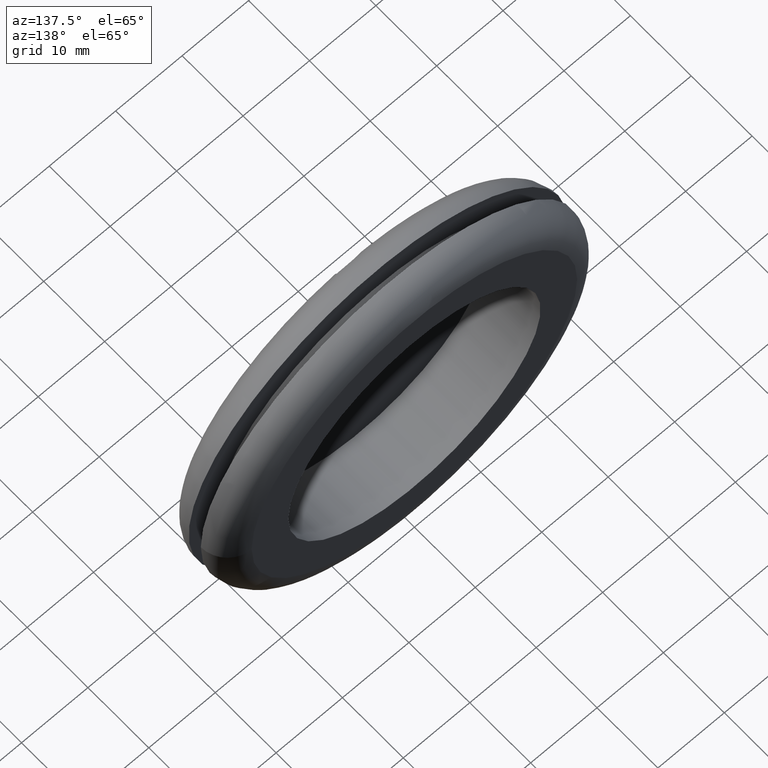
[diagram: clean part render]
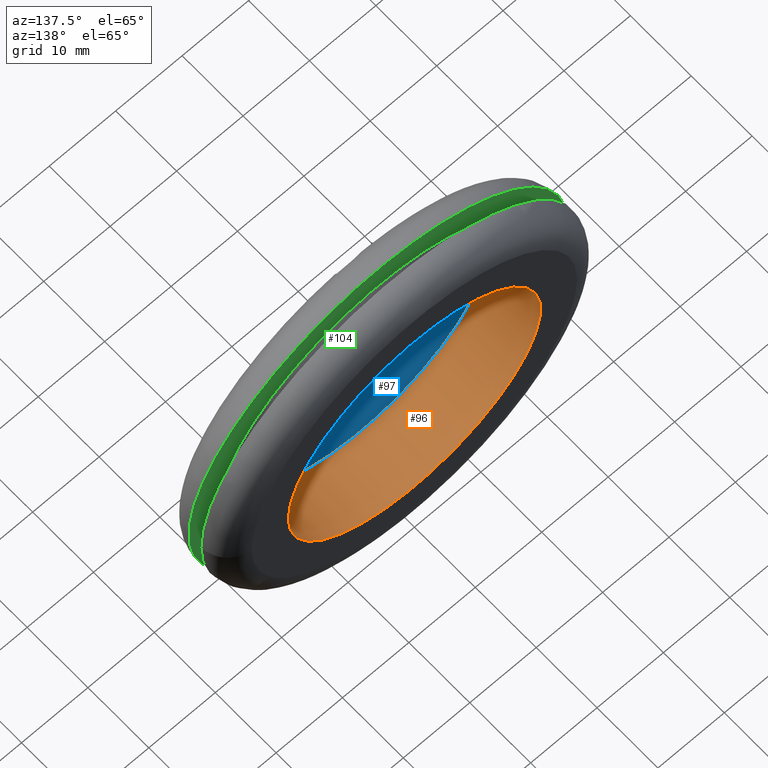
[diagram: same view with three faces highlighted in distinct colors, each labeled with its STEP entity id]
A machine part, auxiliary view with three faces highlighted in distinct colors.
Their STEP definitions:

[orange] entity #96 — the highlighted cylindrical surface (bore or boss wall) has radius 19 mm, axis along (0, -1, 0).
#22=FACE_BOUND('',#39,.T.);
#29=FACE_OUTER_BOUND('',#38,.T.);
#38=EDGE_LOOP('',(#78));
#39=EDGE_LOOP('',(#79));
#54=CIRCLE('',#108,19.);
#55=CIRCLE('',#109,19.);
#62=VERTEX_POINT('',#162);
#63=VERTEX_POINT('',#164);
#70=EDGE_CURVE('',#62,#62,#54,.T.);
#71=EDGE_CURVE('',#63,#63,#55,.T.);
#78=ORIENTED_EDGE('',*,*,#70,.T.);
#79=ORIENTED_EDGE('',*,*,#71,.F.);
#94=CYLINDRICAL_SURFACE('',#107,19.);
#96=ADVANCED_FACE('',(#29,#22),#94,.F.);
#107=AXIS2_PLACEMENT_3D('',#161,#126,#127);
#108=AXIS2_PLACEMENT_3D('',#163,#128,#129);
#109=AXIS2_PLACEMENT_3D('',#165,#130,#131);
#126=DIRECTION('center_axis',(0.,-1.,0.));
#127=DIRECTION('ref_axis',(1.,0.,0.));
#128=DIRECTION('center_axis',(0.,-1.,0.));
#129=DIRECTION('ref_axis',(1.,0.,0.));
#130=DIRECTION('center_axis',(0.,-1.,0.));
#131=DIRECTION('ref_axis',(1.,0.,0.));
#161=CARTESIAN_POINT('Origin',(0.,10.,0.));
#162=CARTESIAN_POINT('',(19.,0.999999999999999,0.));
#163=CARTESIAN_POINT('Origin',(0.,0.999999999999999,0.));
#164=CARTESIAN_POINT('',(19.,10.,0.));
#165=CARTESIAN_POINT('Origin',(0.,10.,0.));

[blue] entity #97 — the highlighted planar face has unit normal (0, -1, 0).
#17=PLANE('',#110);
#30=FACE_OUTER_BOUND('',#40,.T.);
#40=EDGE_LOOP('',(#80));
#54=CIRCLE('',#108,19.);
#62=VERTEX_POINT('',#162);
#70=EDGE_CURVE('',#62,#62,#54,.T.);
#80=ORIENTED_EDGE('',*,*,#70,.F.);
#97=ADVANCED_FACE('',(#30),#17,.F.);
#108=AXIS2_PLACEMENT_3D('',#163,#128,#129);
#110=AXIS2_PLACEMENT_3D('',#166,#132,#133);
#128=DIRECTION('center_axis',(0.,-1.,0.));
#129=DIRECTION('ref_axis',(1.,0.,0.));
#132=DIRECTION('center_axis',(0.,-1.,0.));
#133=DIRECTION('ref_axis',(0.,0.,-1.));
#162=CARTESIAN_POINT('',(19.,0.999999999999999,0.));
#163=CARTESIAN_POINT('Origin',(0.,0.999999999999999,0.));
#166=CARTESIAN_POINT('Origin',(-9.73006286794932E-16,0.999999999999996,
-3.89551938464967E-16));

[green] entity #104 — the highlighted planar face has unit normal (0, 1, 0).
#21=PLANE('',#123);
#28=FACE_BOUND('',#53,.T.);
#37=FACE_OUTER_BOUND('',#52,.T.);
#52=EDGE_LOOP('',(#92));
#53=EDGE_LOOP('',(#93));
#56=CIRCLE('',#112,28.5);
#61=CIRCLE('',#122,24.25);
#64=VERTEX_POINT('',#168);
#69=VERTEX_POINT('',#183);
#72=EDGE_CURVE('',#64,#64,#56,.T.);
#77=EDGE_CURVE('',#69,#69,#61,.T.);
#92=ORIENTED_EDGE('',*,*,#72,.T.);
#93=ORIENTED_EDGE('',*,*,#77,.T.);
#104=ADVANCED_FACE('',(#37,#28),#21,.T.);
#112=AXIS2_PLACEMENT_3D('',#169,#136,#137);
#122=AXIS2_PLACEMENT_3D('',#184,#156,#157);
#123=AXIS2_PLACEMENT_3D('',#185,#158,#159);
#136=DIRECTION('center_axis',(0.,1.,0.));
#137=DIRECTION('ref_axis',(1.,0.,0.));
#156=DIRECTION('center_axis',(0.,-1.,0.));
#157=DIRECTION('ref_axis',(1.,0.,0.));
#158=DIRECTION('center_axis',(0.,1.,0.));
#159=DIRECTION('ref_axis',(0.,0.,1.));
#168=CARTESIAN_POINT('',(-28.5,4.,3.49024337756996E-15));
#169=CARTESIAN_POINT('Origin',(0.,4.,0.));
#183=CARTESIAN_POINT('',(24.25,4.,0.));
#184=CARTESIAN_POINT('Origin',(0.,4.,0.));
#185=CARTESIAN_POINT('Origin',(2.90853614797496E-16,4.,0.));